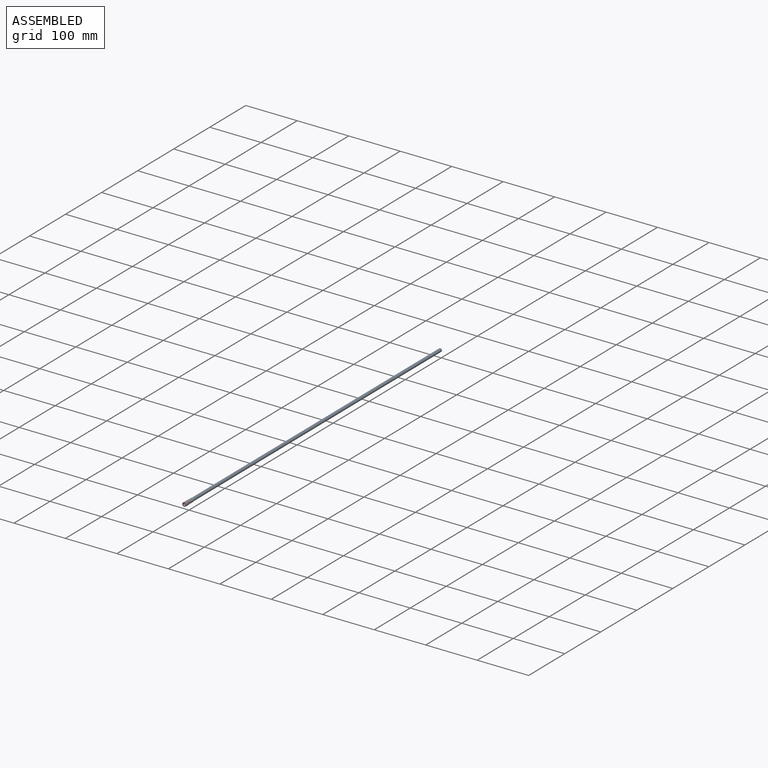
[diagram: assembled view]
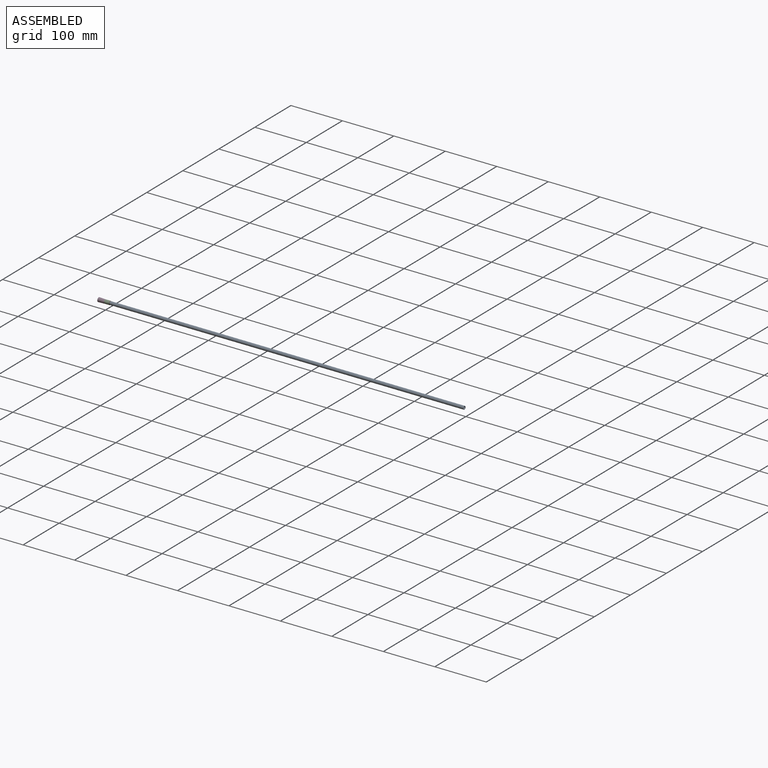
[diagram: assembled view, second angle]
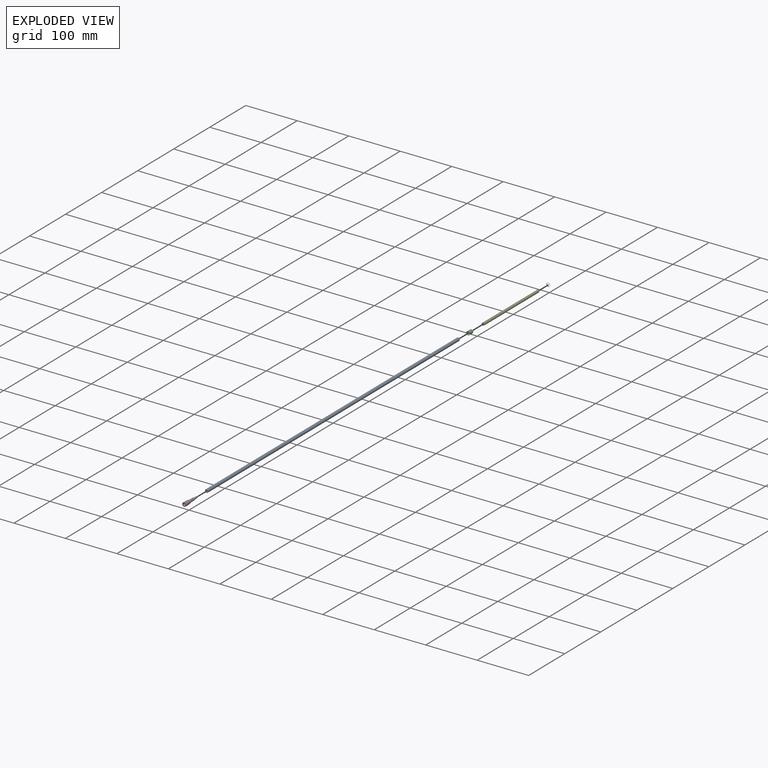
[diagram: exploded view]
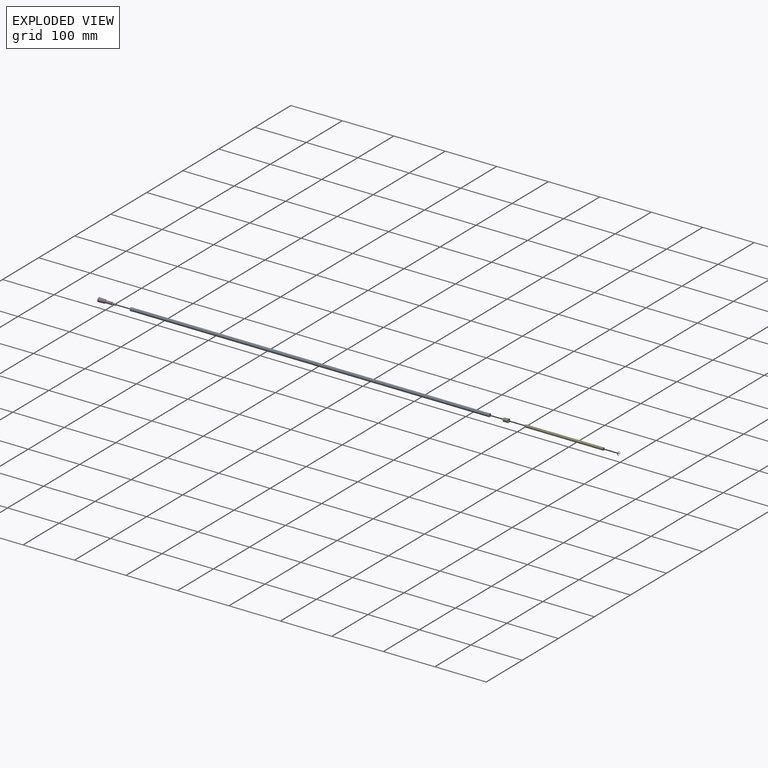
[diagram: exploded view, second angle]
ASSEMBLY  parts=5 mates=4
PART A: 5 faces, bbox 6.3x698.5x6.3 mm
  f0: cylinder r=2.59mm len=698.5mm, axis (0,1,0), area 11370.5mm2, adj f2,f3
  f1: cylinder r=3.14mm len=698.14mm, axis (0,1,0), area 13760.2mm2, adj f3,f4
  f2: plane 5.21x5.21mm, normal (0,-1,0), area 0.2mm2, adj f0,f4
  f3: plane 6.27x6.27mm, normal (0,1,0), area 9.8mm2, adj f0,f1
  f4: cone r=2.6mm half-angle=56.3deg, axis (0,1,0), area 11.6mm2, adj f1,f2
PART B: 3 faces, bbox 7.1x0.8x7.1 mm
  f0: cone r=3.15mm half-angle=28.6deg, axis (0,-1,0), area 18.6mm2, adj f1,f2
  f1: plane 7.14x7.14mm, normal (0,-1,0), area 8.9mm2, adj f0,f2
  f2: cylinder r=3.15mm len=6.3mm, axis (0,-1,0), area 15.3mm2, adj f0,f1
PART C: 4 faces, bbox 7.1x9.5x7.1 mm
  f0: cylinder r=3.17mm len=9.53mm, axis (0,1,0), area 189.4mm2, adj f2,f3
  f1: cylinder r=3.57mm len=9.53mm, axis (0,1,0), area 213.8mm2, adj f2,f3
  f2: plane 7.14x7.14mm, normal (0,-1,0), area 8.6mm2, adj f0,f1
  f3: plane 7.14x7.14mm, normal (0,1,0), area 8.6mm2, adj f0,f1
PART D: 44 faces, bbox 8x34x8 mm
  f0: cylinder r=2.57mm len=13.74mm, axis (0,1,0), area 221.5mm2, adj f1,f43
  f1: cone r=3.59mm half-angle=56.3deg, axis (0,1,0), area 23.9mm2, adj f0,f2
  f2: cone r=4mm half-angle=1.8deg, axis (0,-1,0), area 303.2mm2, adj f1,f3
  f3: plane 8x8mm, normal (0,-1,0), area 29.2mm2, adj f2,f4
  f4: cylinder r=2.59mm len=10.16mm, axis (0,1,0), area 165.4mm2, adj f3,f5
  f5: cone r=2.59mm half-angle=25.2deg, axis (0,-1,0), area 17.5mm2, adj f4,f6
  f6: cone r=2.08mm half-angle=51.3deg, axis (0,-1,0), area 7.2mm2, adj f5,f7
  f7: cone r=1.6mm half-angle=50.3deg, axis (0,1,0), area 7.3mm2, adj f6,f8
  f8: cone r=2.08mm half-angle=51.3deg, axis (0,-1,0), area 7.2mm2, adj f7,f9
  f9: cone r=1.6mm half-angle=50.3deg, axis (0,1,0), area 7.3mm2, adj f8,f10
  f10: cone r=2.08mm half-angle=51.3deg, axis (0,-1,0), area 7.2mm2, adj f9,f11
  f11: cone r=1.6mm half-angle=50.3deg, axis (0,1,0), area 7.3mm2, adj f10,f12
  f12: cone r=2.08mm half-angle=51.3deg, axis (0,-1,0), area 7.2mm2, adj f11,f13
  f13: cone r=1.6mm half-angle=50.3deg, axis (0,1,0), area 7.3mm2, adj f12,f14
  f14: cone r=2.08mm half-angle=51.3deg, axis (0,-1,0), area 7.2mm2, adj f13,f15
  f15: cone r=1.6mm half-angle=50.3deg, axis (0,1,0), area 7.3mm2, adj f14,f16
  f16: cone r=2.08mm half-angle=51.3deg, axis (0,-1,0), area 7.2mm2, adj f15,f17
  f17: cone r=1.6mm half-angle=50.3deg, axis (0,1,0), area 7.3mm2, adj f16,f18
  f18: cone r=2.08mm half-angle=51.3deg, axis (0,-1,0), area 7.2mm2, adj f17,f19
  f19: cone r=1.6mm half-angle=50.3deg, axis (0,1,0), area 7.3mm2, adj f18,f20
  f20: cone r=2.08mm half-angle=51.3deg, axis (0,-1,0), area 7.2mm2, adj f19,f21
  f21: cone r=1.6mm half-angle=50.3deg, axis (0,1,0), area 7.3mm2, adj f20,f22
  f22: cone r=2.08mm half-angle=51.3deg, axis (0,-1,0), area 7.2mm2, adj f21,f23
  f23: cone r=1.6mm half-angle=50.3deg, axis (0,1,0), area 7.3mm2, adj f22,f24
  f24: cone r=2.08mm half-angle=51.3deg, axis (0,-1,0), area 7.2mm2, adj f23,f25
  f25: cone r=1.6mm half-angle=50.3deg, axis (0,1,0), area 7.3mm2, adj f24,f26
  f26: cone r=2.08mm half-angle=51.3deg, axis (0,-1,0), area 7.2mm2, adj f25,f27
  f27: cone r=1.6mm half-angle=50.3deg, axis (0,1,0), area 7.3mm2, adj f26,f28
  f28: cone r=2.08mm half-angle=51.3deg, axis (0,-1,0), area 7.2mm2, adj f27,f29
  f29: cone r=1.6mm half-angle=50.3deg, axis (0,1,0), area 7.3mm2, adj f28,f30
  f30: cone r=2.08mm half-angle=51.3deg, axis (0,-1,0), area 7.2mm2, adj f29,f31
  f31: cone r=1.6mm half-angle=50.3deg, axis (0,1,0), area 7.3mm2, adj f30,f32
  f32: cone r=2.08mm half-angle=51.3deg, axis (0,-1,0), area 7.2mm2, adj f31,f33
  f33: cone r=1.6mm half-angle=50.3deg, axis (0,1,0), area 7.3mm2, adj f32,f34
  f34: cone r=2.08mm half-angle=51.3deg, axis (0,-1,0), area 7.2mm2, adj f33,f35
  f35: cone r=1.6mm half-angle=50.3deg, axis (0,1,0), area 7.3mm2, adj f34,f36
  f36: cone r=2.08mm half-angle=51.3deg, axis (0,-1,0), area 7.2mm2, adj f35,f37
  f37: cone r=1.6mm half-angle=50.3deg, axis (0,1,0), area 7.3mm2, adj f36,f38
  f38: cylinder r=2.08mm len=4.17mm, axis (0,1,0), area 9.5mm2, adj f37,f39
  f39: plane 4.17x4.17mm, normal (0,-1,0), area 6.6mm2, adj f38,f40
  f40: cylinder r=1.5mm len=9.34mm, axis (0,1,0), area 88mm2, adj f39,f41
  f41: plane 3.51x3.51mm, normal (0,1,0), area 2.6mm2, adj f40,f42
  f42: cylinder r=1.75mm len=8.26mm, axis (0,1,0), area 90.9mm2, adj f41,f43
  f43: plane 5.13x5.13mm, normal (0,1,0), area 11mm2, adj f0,f42
PART E: 4 faces, bbox 5.2x152.4x5.2 mm
  f0: plane 5.17x5.17mm, normal (0,-1,0), area 11.1mm2, adj f1,f3
  f1: cylinder r=1.78mm len=152.4mm, axis (0,1,0), area 1702.5mm2, adj f0,f2
  f2: plane 5.17x5.17mm, normal (0,1,0), area 11.1mm2, adj f1,f3
  f3: cylinder r=2.58mm len=152.4mm, axis (0,1,0), area 2474.8mm2, adj f0,f2
PLACE A t=(0,697.49,0)mm
PLACE B t=(0,8.61,0)mm
PLACE C t=(0,9.07,0)mm
PLACE D t=(0,9.51,0)mm
PLACE E t=(0,30.13,0)mm
MATE fastened D.f0 <-> E.f1  axis (0,1,0) through (0,12.6,0)mm
MATE fastened C.f1 <-> D.f0  axis (0,-1,0) through (0,-0.46,0)mm
MATE fastened A.f0 <-> D.f0  axis (0,-1,0) through (0,-1.01,0)mm
MATE fastened B.f0 <-> C.f1  axis (0,-1,0) through (0,9.07,0)mm
